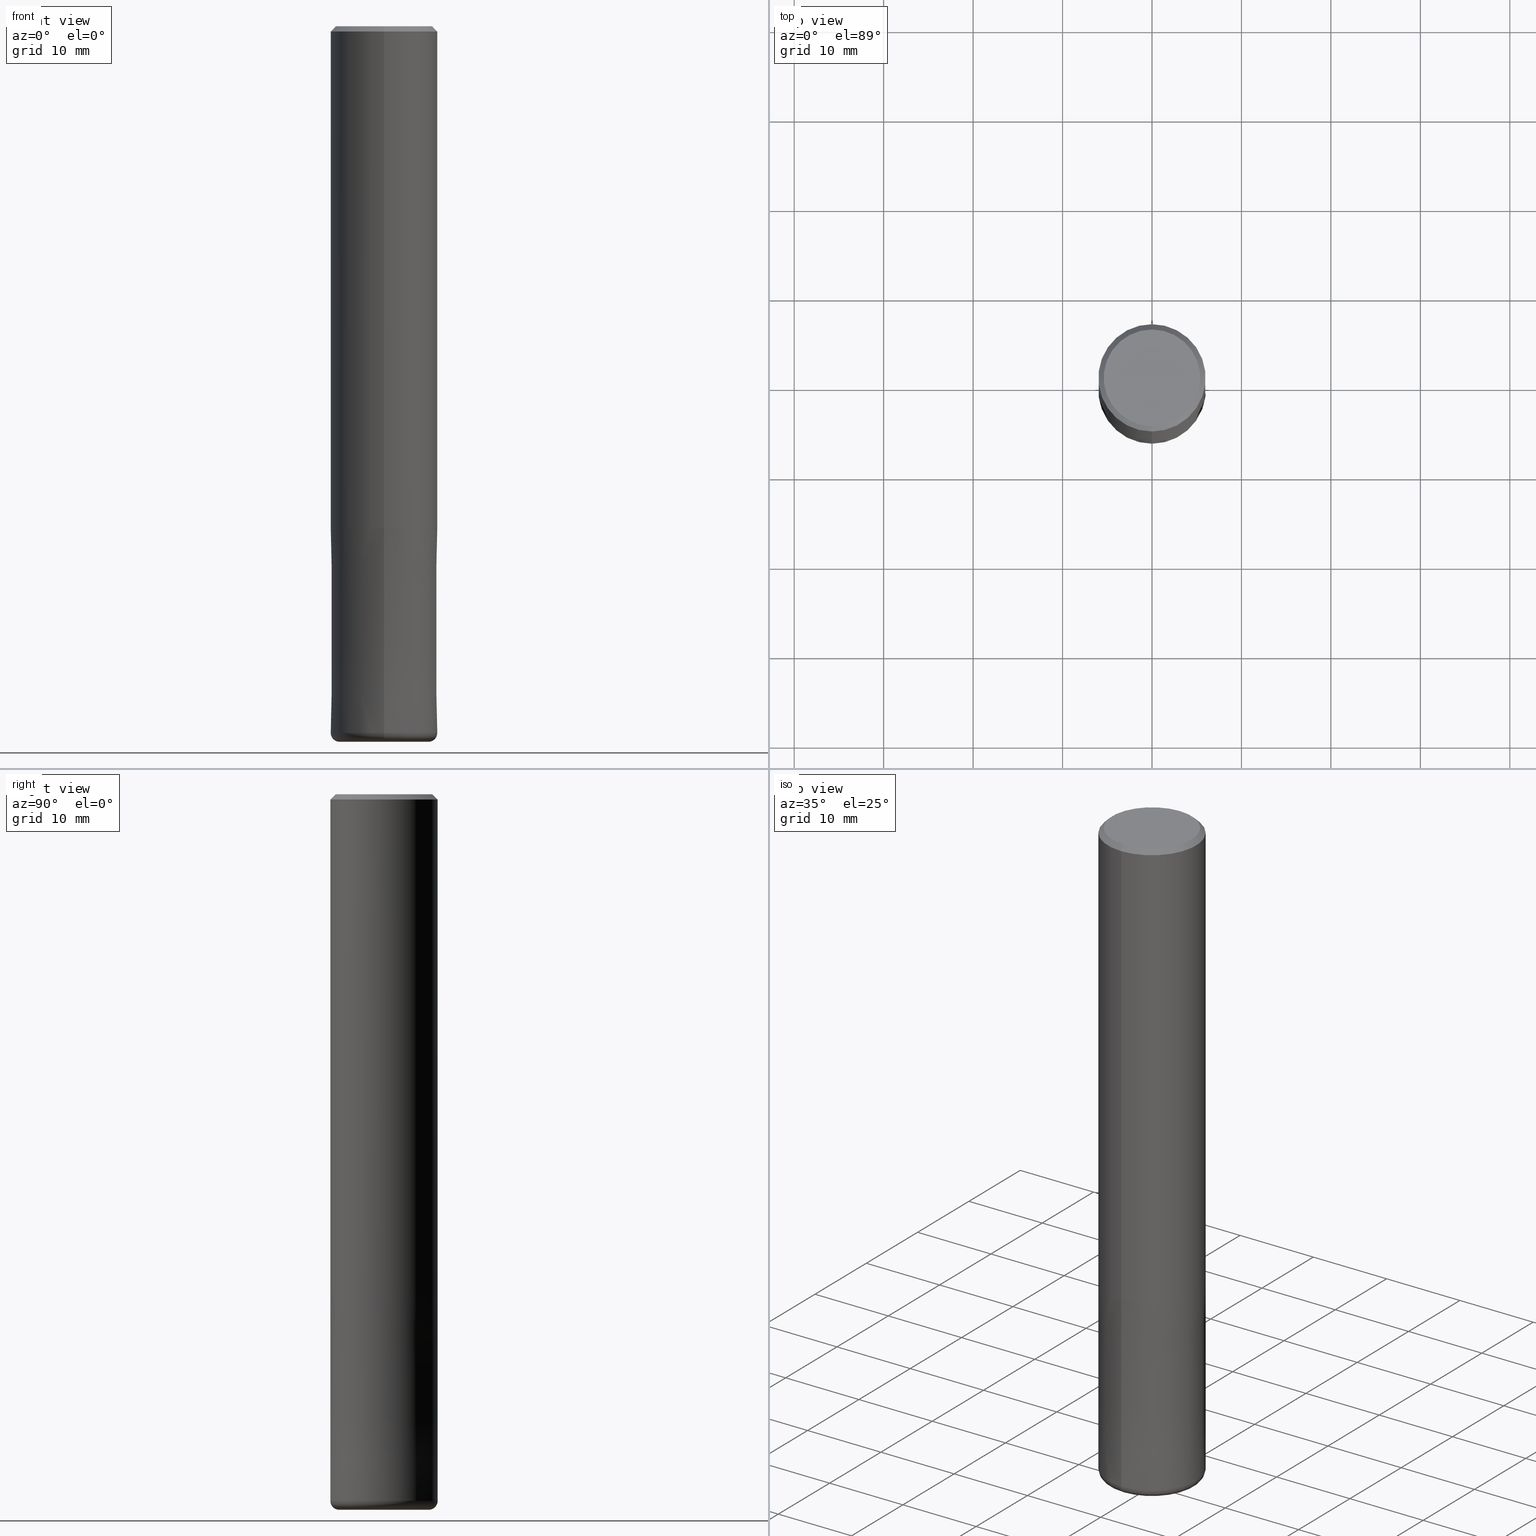
[diagram: canonical four-view strip — front | top / right | iso, engineering-drawing reading convention]
A machine part, canonical four-view strip (front | top / right | iso — engineering-drawing reading convention). The complete STEP part file that produces these views, byte-faithful:
ISO-10303-21;
HEADER;
FILE_DESCRIPTION(('no description'),'unknown implementation level');
FILE_NAME('CXRS5120-10-2400-Huellk.stp','  ',('CIMSOURCE GmbH'),('CADClick - KiM GmbH - www.kimweb.de'),'unknown preprocess','ACIS','unknown authorization');
FILE_SCHEMA(('automotive_design'));
ENDSEC;
DATA;
#1=MECHANICAL_DESIGN_GEOMETRIC_PRESENTATION_REPRESENTATION(' ',(#14,#15,#16,#17,#18,#19,#20,#21,#22,#23,#24,#25,#26,#27,#28,#29,#30,#31,#32,#33,#34,#35,#36,#37,#38,#39,#40,#41,#42,#43,#44,#45,#46,#47,#48,#49,#50,#51,#52,#53,#54,#55,#56,#57,#58,#59,#60,#61,#62,#63,#64,#65,#66,#67,#68,#69,#70,#71,#72,#73,#74,#75,#76,#77,#78,#79,#80,#81,#82,#83,#84),#10);
#2=PRODUCT_DEFINITION_CONTEXT('',#85,'design');
#3=APPLICATION_PROTOCOL_DEFINITION('INTERNATIONAL STANDARD','automotive_design',1994,#85);
#4=PRODUCT_CATEGORY_RELATIONSHIP('NONE','NONE',#86,#87);
#5=SHAPE_DEFINITION_REPRESENTATION(#88,#89);
#6=PRODUCT_DEFINITION_CONTEXT('',#90,'design');
#7=APPLICATION_PROTOCOL_DEFINITION('INTERNATIONAL STANDARD','automotive_design',1994,#90);
#8=PRODUCT_CATEGORY_RELATIONSHIP('NONE','NONE',#91,#92);
#9=SHAPE_DEFINITION_REPRESENTATION(#93,#94);
#10= (GEOMETRIC_REPRESENTATION_CONTEXT(3)GLOBAL_UNCERTAINTY_ASSIGNED_CONTEXT((#97))GLOBAL_UNIT_ASSIGNED_CONTEXT((#99,#100,#101))REPRESENTATION_CONTEXT('NONE','WORKSPACE'));
#14=STYLED_ITEM('',(#103),#104);
#15=STYLED_ITEM('',(#105),#106);
#16=STYLED_ITEM('',(#107),#108);
#17=STYLED_ITEM('',(#109),#110);
#18=STYLED_ITEM('',(#111),#112);
#19=STYLED_ITEM('',(#113),#114);
#20=STYLED_ITEM('',(#115),#116);
#21=STYLED_ITEM('',(#117),#118);
#22=STYLED_ITEM('',(#119),#120);
#23=STYLED_ITEM('',(#121),#122);
#24=STYLED_ITEM('',(#123),#124);
#25=STYLED_ITEM('',(#125),#126);
#26=STYLED_ITEM('',(#127),#128);
#27=STYLED_ITEM('',(#129),#130);
#28=STYLED_ITEM('',(#131),#132);
#29=STYLED_ITEM('',(#133),#134);
#30=STYLED_ITEM('',(#135),#136);
#31=STYLED_ITEM('',(#137),#138);
#32=STYLED_ITEM('',(#139),#140);
#33=STYLED_ITEM('',(#141),#142);
#34=STYLED_ITEM('',(#143),#144);
#35=STYLED_ITEM('',(#145),#146);
#36=STYLED_ITEM('',(#147),#148);
#37=STYLED_ITEM('',(#149),#150);
#38=STYLED_ITEM('',(#151),#152);
#39=STYLED_ITEM('',(#153),#154);
#40=STYLED_ITEM('',(#155),#156);
#41=STYLED_ITEM('',(#157),#158);
#42=STYLED_ITEM('',(#159),#160);
#43=STYLED_ITEM('',(#161),#162);
#44=STYLED_ITEM('',(#163),#164);
#45=STYLED_ITEM('',(#165),#166);
#46=STYLED_ITEM('',(#167),#168);
#47=STYLED_ITEM('',(#169),#170);
#48=STYLED_ITEM('',(#171),#172);
#49=STYLED_ITEM('',(#173),#174);
#50=STYLED_ITEM('',(#175),#176);
#51=STYLED_ITEM('',(#177),#178);
#52=STYLED_ITEM('',(#179),#180);
#53=STYLED_ITEM('',(#181),#182);
#54=STYLED_ITEM('',(#183),#184);
#55=STYLED_ITEM('',(#185),#186);
#56=STYLED_ITEM('',(#187),#188);
#57=STYLED_ITEM('',(#189),#190);
#58=STYLED_ITEM('',(#191),#192);
#59=STYLED_ITEM('',(#193),#194);
#60=STYLED_ITEM('',(#195),#196);
#61=STYLED_ITEM('',(#197),#198);
#62=STYLED_ITEM('',(#199),#200);
#63=STYLED_ITEM('',(#201),#202);
#64=STYLED_ITEM('',(#203),#204);
#65=STYLED_ITEM('',(#205),#206);
#66=STYLED_ITEM('',(#207),#208);
#67=STYLED_ITEM('',(#209),#210);
#68=STYLED_ITEM('',(#211),#212);
#69=STYLED_ITEM('',(#213),#214);
#70=STYLED_ITEM('',(#215),#216);
#71=STYLED_ITEM('',(#217),#218);
#72=STYLED_ITEM('',(#219),#220);
#73=STYLED_ITEM('',(#221),#222);
#74=STYLED_ITEM('',(#223),#224);
#75=STYLED_ITEM('',(#225),#226);
#76=STYLED_ITEM('',(#227),#228);
#77=STYLED_ITEM('',(#229),#230);
#78=STYLED_ITEM('',(#231),#232);
#79=STYLED_ITEM('',(#233),#234);
#80=STYLED_ITEM('',(#235),#236);
#81=STYLED_ITEM('',(#237),#238);
#82=STYLED_ITEM('',(#239),#240);
#83=STYLED_ITEM('',(#241),#242);
#84=STYLED_ITEM('',(#243),#244);
#85=APPLICATION_CONTEXT(' ');
#86=PRODUCT_CATEGORY('part','NONE');
#87=PRODUCT_RELATED_PRODUCT_CATEGORY('detail',' ',(#245));
#88=PRODUCT_DEFINITION_SHAPE('NONE','NONE',#246);
#89=ADVANCED_BREP_SHAPE_REPRESENTATION('1',(#178,#247),#10);
#90=APPLICATION_CONTEXT(' ');
#91=PRODUCT_CATEGORY('part','NONE');
#92=PRODUCT_RELATED_PRODUCT_CATEGORY('detail',' ',(#248));
#93=PRODUCT_DEFINITION_SHAPE('NONE','NONE',#249);
#94=ADVANCED_BREP_SHAPE_REPRESENTATION('2',(#228,#250),#10);
#97=UNCERTAINTY_MEASURE_WITH_UNIT(LENGTH_MEASURE(1.0E-006),#99,'','');
#99= (CONVERSION_BASED_UNIT('MILLIMETRE',#253)LENGTH_UNIT()NAMED_UNIT(#256));
#100= (NAMED_UNIT(#258)PLANE_ANGLE_UNIT()SI_UNIT($,.RADIAN.));
#101= (NAMED_UNIT(#258)SOLID_ANGLE_UNIT()SI_UNIT($,.STERADIAN.));
#103=PRESENTATION_STYLE_ASSIGNMENT((#264));
#104=EDGE_CURVE('',#144,#168,#265,.T.);
#105=PRESENTATION_STYLE_ASSIGNMENT((#266));
#106=ADVANCED_FACE('',(#267),#268,.T.);
#107=PRESENTATION_STYLE_ASSIGNMENT((#269));
#108=ADVANCED_FACE('',(#270),#271,.T.);
#109=PRESENTATION_STYLE_ASSIGNMENT((#272));
#110=EDGE_CURVE('',#222,#130,#273,.T.);
#111=PRESENTATION_STYLE_ASSIGNMENT((#274));
#112=ADVANCED_FACE('',(#275),#276,.T.);
#113=PRESENTATION_STYLE_ASSIGNMENT((#277));
#114=ADVANCED_FACE('',(#278),#279,.T.);
#115=PRESENTATION_STYLE_ASSIGNMENT((#280));
#116=VERTEX_POINT('',#281);
#117=PRESENTATION_STYLE_ASSIGNMENT((#282));
#118=VERTEX_POINT('',#283);
#119=PRESENTATION_STYLE_ASSIGNMENT((#284));
#120=EDGE_CURVE('',#136,#196,#285,.T.);
#121=PRESENTATION_STYLE_ASSIGNMENT((#286));
#122=VERTEX_POINT('',#287);
#123=PRESENTATION_STYLE_ASSIGNMENT((#288));
#124=EDGE_CURVE('',#168,#244,#289,.T.);
#125=PRESENTATION_STYLE_ASSIGNMENT((#290));
#126=EDGE_CURVE('',#122,#236,#291,.T.);
#127=PRESENTATION_STYLE_ASSIGNMENT((#292));
#128=VERTEX_POINT('',#293);
#129=PRESENTATION_STYLE_ASSIGNMENT((#294));
#130=VERTEX_POINT('',#295);
#131=PRESENTATION_STYLE_ASSIGNMENT((#296));
#132=EDGE_CURVE('',#168,#116,#297,.T.);
#133=PRESENTATION_STYLE_ASSIGNMENT((#298));
#134=ADVANCED_FACE('',(#299),#300,.T.);
#135=PRESENTATION_STYLE_ASSIGNMENT((#301));
#136=VERTEX_POINT('',#302);
#137=PRESENTATION_STYLE_ASSIGNMENT((#303));
#138=EDGE_CURVE('',#116,#220,#304,.T.);
#139=PRESENTATION_STYLE_ASSIGNMENT((#305));
#140=ADVANCED_FACE('',(#306),#307,.F.);
#141=PRESENTATION_STYLE_ASSIGNMENT((#308));
#142=ADVANCED_FACE('',(#309),#310,.T.);
#143=PRESENTATION_STYLE_ASSIGNMENT((#311));
#144=VERTEX_POINT('',#312);
#145=PRESENTATION_STYLE_ASSIGNMENT((#313));
#146=VERTEX_POINT('',#314);
#147=PRESENTATION_STYLE_ASSIGNMENT((#315));
#148=ADVANCED_FACE('',(#316),#317,.T.);
#149=PRESENTATION_STYLE_ASSIGNMENT((#318));
#150=EDGE_CURVE('',#146,#172,#319,.T.);
#151=PRESENTATION_STYLE_ASSIGNMENT((#320));
#152=EDGE_CURVE('',#240,#146,#321,.T.);
#153=PRESENTATION_STYLE_ASSIGNMENT((#322));
#154=EDGE_CURVE('',#230,#236,#323,.T.);
#155=PRESENTATION_STYLE_ASSIGNMENT((#324));
#156=EDGE_CURVE('',#128,#240,#325,.T.);
#157=PRESENTATION_STYLE_ASSIGNMENT((#326));
#158=EDGE_CURVE('',#236,#230,#327,.T.);
#159=PRESENTATION_STYLE_ASSIGNMENT((#328));
#160=EDGE_CURVE('',#230,#218,#329,.T.);
#161=PRESENTATION_STYLE_ASSIGNMENT((#330));
#162=EDGE_CURVE('',#118,#180,#331,.T.);
#163=PRESENTATION_STYLE_ASSIGNMENT((#332));
#164=ADVANCED_FACE('',(#333),#334,.T.);
#165=PRESENTATION_STYLE_ASSIGNMENT((#335));
#166=VERTEX_POINT('',#336);
#167=PRESENTATION_STYLE_ASSIGNMENT((#337));
#168=VERTEX_POINT('',#338);
#169=PRESENTATION_STYLE_ASSIGNMENT((#339));
#170=EDGE_CURVE('',#218,#122,#340,.T.);
#171=PRESENTATION_STYLE_ASSIGNMENT((#341));
#172=VERTEX_POINT('',#342);
#173=PRESENTATION_STYLE_ASSIGNMENT((#343));
#174=ADVANCED_FACE('',(#344),#345,.T.);
#175=PRESENTATION_STYLE_ASSIGNMENT((#346));
#176=EDGE_CURVE('',#196,#136,#347,.T.);
#177=PRESENTATION_STYLE_ASSIGNMENT((#348));
#178=MANIFOLD_SOLID_BREP('1',#349);
#179=PRESENTATION_STYLE_ASSIGNMENT((#350));
#180=VERTEX_POINT('',#351);
#181=PRESENTATION_STYLE_ASSIGNMENT((#352));
#182=EDGE_CURVE('',#172,#128,#353,.T.);
#183=PRESENTATION_STYLE_ASSIGNMENT((#354));
#184=EDGE_CURVE('',#130,#222,#355,.T.);
#185=PRESENTATION_STYLE_ASSIGNMENT((#356));
#186=EDGE_CURVE('',#180,#118,#357,.T.);
#187=PRESENTATION_STYLE_ASSIGNMENT((#358));
#188=EDGE_CURVE('',#128,#172,#359,.T.);
#189=PRESENTATION_STYLE_ASSIGNMENT((#360));
#190=EDGE_CURVE('',#118,#136,#361,.T.);
#191=PRESENTATION_STYLE_ASSIGNMENT((#362));
#192=EDGE_CURVE('',#244,#166,#363,.T.);
#193=PRESENTATION_STYLE_ASSIGNMENT((#364));
#194=ADVANCED_FACE('',(#365,#366),#367,.T.);
#195=PRESENTATION_STYLE_ASSIGNMENT((#368));
#196=VERTEX_POINT('',#369);
#197=PRESENTATION_STYLE_ASSIGNMENT((#370));
#198=EDGE_CURVE('',#196,#180,#371,.T.);
#199=PRESENTATION_STYLE_ASSIGNMENT((#372));
#200=ADVANCED_FACE('',(#373),#374,.F.);
#201=PRESENTATION_STYLE_ASSIGNMENT((#375));
#202=ADVANCED_FACE('',(#376),#377,.T.);
#203=PRESENTATION_STYLE_ASSIGNMENT((#378));
#204=EDGE_CURVE('',#144,#166,#379,.T.);
#205=PRESENTATION_STYLE_ASSIGNMENT((#380));
#206=ADVANCED_FACE('',(#381),#382,.T.);
#207=PRESENTATION_STYLE_ASSIGNMENT((#383));
#208=EDGE_CURVE('',#244,#168,#384,.T.);
#209=PRESENTATION_STYLE_ASSIGNMENT((#385));
#210=EDGE_CURVE('',#122,#218,#386,.T.);
#211=PRESENTATION_STYLE_ASSIGNMENT((#387));
#212=ADVANCED_FACE('',(#388,#389),#390,.T.);
#213=PRESENTATION_STYLE_ASSIGNMENT((#391));
#214=EDGE_CURVE('',#146,#240,#392,.T.);
#215=PRESENTATION_STYLE_ASSIGNMENT((#393));
#216=EDGE_CURVE('',#220,#116,#394,.T.);
#217=PRESENTATION_STYLE_ASSIGNMENT((#395));
#218=VERTEX_POINT('',#396);
#219=PRESENTATION_STYLE_ASSIGNMENT((#397));
#220=VERTEX_POINT('',#398);
#221=PRESENTATION_STYLE_ASSIGNMENT((#399));
#222=VERTEX_POINT('',#400);
#223=PRESENTATION_STYLE_ASSIGNMENT((#401));
#224=EDGE_CURVE('',#166,#144,#402,.T.);
#225=PRESENTATION_STYLE_ASSIGNMENT((#403));
#226=EDGE_CURVE('',#222,#240,#404,.T.);
#227=PRESENTATION_STYLE_ASSIGNMENT((#405));
#228=MANIFOLD_SOLID_BREP('2',#406);
#229=PRESENTATION_STYLE_ASSIGNMENT((#407));
#230=VERTEX_POINT('',#408);
#231=PRESENTATION_STYLE_ASSIGNMENT((#409));
#232=EDGE_CURVE('',#220,#244,#410,.T.);
#233=PRESENTATION_STYLE_ASSIGNMENT((#411));
#234=ADVANCED_FACE('',(#412),#413,.T.);
#235=PRESENTATION_STYLE_ASSIGNMENT((#414));
#236=VERTEX_POINT('',#415);
#237=PRESENTATION_STYLE_ASSIGNMENT((#416));
#238=EDGE_CURVE('',#146,#130,#417,.T.);
#239=PRESENTATION_STYLE_ASSIGNMENT((#418));
#240=VERTEX_POINT('',#419);
#241=PRESENTATION_STYLE_ASSIGNMENT((#420));
#242=ADVANCED_FACE('',(#421,#422),#423,.T.);
#243=PRESENTATION_STYLE_ASSIGNMENT((#424));
#244=VERTEX_POINT('',#425);
#245=PRODUCT('1','1','PART-1-DESC',(#426));
#246=PRODUCT_DEFINITION('NONE','NONE',#427,#2);
#247=AXIS2_PLACEMENT_3D('',#428,#429,#430);
#248=PRODUCT('2','2','PART-2-DESC',(#431));
#249=PRODUCT_DEFINITION('NONE','NONE',#432,#6);
#250=AXIS2_PLACEMENT_3D('',#433,#434,#435);
#253=LENGTH_MEASURE_WITH_UNIT(LENGTH_MEASURE(1.0),#436);
#256=DIMENSIONAL_EXPONENTS(1.0,0.0,0.0,0.0,0.0,0.0,0.0);
#258=DIMENSIONAL_EXPONENTS(0.0,0.0,0.0,0.0,0.0,0.0,0.0);
#264=CURVE_STYLE('',#437,POSITIVE_LENGTH_MEASURE(1.0E-006),#438);
#265=LINE('',#439,#440);
#266=SURFACE_STYLE_USAGE(.BOTH.,#441);
#267=FACE_OUTER_BOUND('',#442,.T.);
#268=CONICAL_SURFACE('',#443,5.7,0.785398163397447);
#269=SURFACE_STYLE_USAGE(.BOTH.,#444);
#270=FACE_OUTER_BOUND('',#445,.T.);
#271=TOROIDAL_SURFACE('',#446,5.00000000000001,0.999999999999989);
#272=CURVE_STYLE('',#447,POSITIVE_LENGTH_MEASURE(1.0E-006),#448);
#273=CIRCLE('',#449,5.9999);
#274=SURFACE_STYLE_USAGE(.BOTH.,#450);
#275=FACE_OUTER_BOUND('',#451,.T.);
#276=CYLINDRICAL_SURFACE('',#452,6.0);
#277=SURFACE_STYLE_USAGE(.BOTH.,#453);
#278=FACE_OUTER_BOUND('',#454,.T.);
#279=CONICAL_SURFACE('',#455,5.99995,4.34782608691899E-006);
#280=POINT_STYLE(' ',#456,POSITIVE_LENGTH_MEASURE(1.0E-006),#457);
#281=CARTESIAN_POINT('',(6.61287431064084E-016,-5.4,0.0));
#282=POINT_STYLE(' ',#458,POSITIVE_LENGTH_MEASURE(1.0E-006),#459);
#283=CARTESIAN_POINT('',(3.30643715532042E-016,-2.7,-79.76));
#284=CURVE_STYLE('',#460,POSITIVE_LENGTH_MEASURE(1.0E-006),#461);
#285=CIRCLE('',#462,2.7);
#286=POINT_STYLE(' ',#463,POSITIVE_LENGTH_MEASURE(1.0E-006),#464);
#287=CARTESIAN_POINT('',(3.30643715532042E-016,-2.7,-80.0));
#288=CURVE_STYLE('',#465,POSITIVE_LENGTH_MEASURE(1.0E-006),#466);
#289=CIRCLE('',#467,6.0);
#290=CURVE_STYLE('',#468,POSITIVE_LENGTH_MEASURE(1.0E-006),#469);
#291=LINE('',#470,#471);
#292=POINT_STYLE(' ',#472,POSITIVE_LENGTH_MEASURE(1.0E-006),#473);
#293=CARTESIAN_POINT('',(0.0,5.0,-80.0));
#294=POINT_STYLE(' ',#474,POSITIVE_LENGTH_MEASURE(1.0E-006),#475);
#295=CARTESIAN_POINT('',(7.34751566229888E-016,-5.9999,-56.0));
#296=CURVE_STYLE('',#476,POSITIVE_LENGTH_MEASURE(1.0E-006),#477);
#297=LINE('',#478,#479);
#298=SURFACE_STYLE_USAGE(.BOTH.,#480);
#299=FACE_OUTER_BOUND('',#481,.T.);
#300=CONICAL_SURFACE('',#482,5.7,0.785398163397447);
#301=POINT_STYLE(' ',#483,POSITIVE_LENGTH_MEASURE(1.0E-006),#484);
#302=CARTESIAN_POINT('',(3.30643715532042E-016,-2.7,-56.0));
#303=CURVE_STYLE('',#485,POSITIVE_LENGTH_MEASURE(1.0E-006),#486);
#304=CIRCLE('',#487,5.4);
#305=SURFACE_STYLE_USAGE(.BOTH.,#488);
#306=FACE_OUTER_BOUND('',#489,.T.);
#307=CYLINDRICAL_SURFACE('',#490,2.7);
#308=SURFACE_STYLE_USAGE(.BOTH.,#491);
#309=FACE_OUTER_BOUND('',#492,.T.);
#310=CONICAL_SURFACE('',#493,5.99995,4.34782608691899E-006);
#311=POINT_STYLE(' ',#494,POSITIVE_LENGTH_MEASURE(1.0E-006),#495);
#312=CARTESIAN_POINT('',(7.34763812293426E-016,-6.0,-56.0));
#313=POINT_STYLE(' ',#496,POSITIVE_LENGTH_MEASURE(1.0E-006),#497);
#314=CARTESIAN_POINT('',(7.34763812293426E-016,-6.0,-79.0));
#315=SURFACE_STYLE_USAGE(.BOTH.,#498);
#316=FACE_OUTER_BOUND('',#499,.T.);
#317=PLANE('',#500);
#318=CURVE_STYLE('',#501,POSITIVE_LENGTH_MEASURE(1.0E-006),#502);
#319=CIRCLE('',#503,0.999999999999989);
#320=CURVE_STYLE('',#504,POSITIVE_LENGTH_MEASURE(1.0E-006),#505);
#321=CIRCLE('',#506,6.0);
#322=CURVE_STYLE('',#507,POSITIVE_LENGTH_MEASURE(1.0E-006),#508);
#323=CIRCLE('',#509,2.7);
#324=CURVE_STYLE('',#510,POSITIVE_LENGTH_MEASURE(1.0E-006),#511);
#325=CIRCLE('',#512,0.999999999999989);
#326=CURVE_STYLE('',#513,POSITIVE_LENGTH_MEASURE(1.0E-006),#514);
#327=CIRCLE('',#515,2.7);
#328=CURVE_STYLE('',#516,POSITIVE_LENGTH_MEASURE(1.0E-006),#517);
#329=LINE('',#518,#519);
#330=CURVE_STYLE('',#520,POSITIVE_LENGTH_MEASURE(1.0E-006),#521);
#331=CIRCLE('',#522,2.7);
#332=SURFACE_STYLE_USAGE(.BOTH.,#523);
#333=FACE_OUTER_BOUND('',#524,.T.);
#334=CYLINDRICAL_SURFACE('',#525,6.0);
#335=POINT_STYLE(' ',#526,POSITIVE_LENGTH_MEASURE(1.0E-006),#527);
#336=CARTESIAN_POINT('',(0.0,6.0,-56.0));
#337=POINT_STYLE(' ',#528,POSITIVE_LENGTH_MEASURE(1.0E-006),#529);
#338=CARTESIAN_POINT('',(7.34763812293426E-016,-6.0,-0.600000000000001));
#339=CURVE_STYLE('',#530,POSITIVE_LENGTH_MEASURE(1.0E-006),#531);
#340=CIRCLE('',#532,2.7);
#341=POINT_STYLE(' ',#533,POSITIVE_LENGTH_MEASURE(1.0E-006),#534);
#342=CARTESIAN_POINT('',(6.12303176911189E-016,-5.0,-80.0));
#343=SURFACE_STYLE_USAGE(.BOTH.,#535);
#344=FACE_OUTER_BOUND('',#536,.T.);
#345=PLANE('',#537);
#346=CURVE_STYLE('',#538,POSITIVE_LENGTH_MEASURE(1.0E-006),#539);
#347=CIRCLE('',#540,2.7);
#348=SURFACE_STYLE_USAGE(.BOTH.,#541);
#349=CLOSED_SHELL('',(#234,#164,#134,#242,#174,#106,#112,#202,#148));
#350=POINT_STYLE(' ',#542,POSITIVE_LENGTH_MEASURE(1.0E-006),#543);
#351=CARTESIAN_POINT('',(0.0,2.7,-79.76));
#352=CURVE_STYLE('',#544,POSITIVE_LENGTH_MEASURE(1.0E-006),#545);
#353=CIRCLE('',#546,5.0);
#354=CURVE_STYLE('',#547,POSITIVE_LENGTH_MEASURE(1.0E-006),#548);
#355=CIRCLE('',#549,5.9999);
#356=CURVE_STYLE('',#550,POSITIVE_LENGTH_MEASURE(1.0E-006),#551);
#357=CIRCLE('',#552,2.7);
#358=CURVE_STYLE('',#553,POSITIVE_LENGTH_MEASURE(1.0E-006),#554);
#359=CIRCLE('',#555,5.0);
#360=CURVE_STYLE('',#556,POSITIVE_LENGTH_MEASURE(1.0E-006),#557);
#361=LINE('',#558,#559);
#362=CURVE_STYLE('',#560,POSITIVE_LENGTH_MEASURE(1.0E-006),#561);
#363=LINE('',#562,#563);
#364=SURFACE_STYLE_USAGE(.BOTH.,#564);
#365=FACE_BOUND('',#565,.T.);
#366=FACE_OUTER_BOUND('',#566,.T.);
#367=PLANE('',#567);
#368=POINT_STYLE(' ',#568,POSITIVE_LENGTH_MEASURE(1.0E-006),#569);
#369=CARTESIAN_POINT('',(0.0,2.7,-56.0));
#370=CURVE_STYLE('',#570,POSITIVE_LENGTH_MEASURE(1.0E-006),#571);
#371=LINE('',#572,#573);
#372=SURFACE_STYLE_USAGE(.BOTH.,#574);
#373=FACE_OUTER_BOUND('',#575,.T.);
#374=CYLINDRICAL_SURFACE('',#576,2.7);
#375=SURFACE_STYLE_USAGE(.BOTH.,#577);
#376=FACE_OUTER_BOUND('',#578,.T.);
#377=CYLINDRICAL_SURFACE('',#579,2.7);
#378=CURVE_STYLE('',#580,POSITIVE_LENGTH_MEASURE(1.0E-006),#581);
#379=CIRCLE('',#582,6.0);
#380=SURFACE_STYLE_USAGE(.BOTH.,#583);
#381=FACE_OUTER_BOUND('',#584,.T.);
#382=TOROIDAL_SURFACE('',#585,5.00000000000001,0.999999999999989);
#383=CURVE_STYLE('',#586,POSITIVE_LENGTH_MEASURE(1.0E-006),#587);
#384=CIRCLE('',#588,6.0);
#385=CURVE_STYLE('',#589,POSITIVE_LENGTH_MEASURE(1.0E-006),#590);
#386=CIRCLE('',#591,2.7);
#387=SURFACE_STYLE_USAGE(.BOTH.,#592);
#388=FACE_OUTER_BOUND('',#593,.T.);
#389=FACE_BOUND('',#594,.T.);
#390=PLANE('',#595);
#391=CURVE_STYLE('',#596,POSITIVE_LENGTH_MEASURE(1.0E-006),#597);
#392=CIRCLE('',#598,6.0);
#393=CURVE_STYLE('',#599,POSITIVE_LENGTH_MEASURE(1.0E-006),#600);
#394=CIRCLE('',#601,5.4);
#395=POINT_STYLE(' ',#602,POSITIVE_LENGTH_MEASURE(1.0E-006),#603);
#396=CARTESIAN_POINT('',(0.0,2.7,-80.0));
#397=POINT_STYLE(' ',#604,POSITIVE_LENGTH_MEASURE(1.0E-006),#605);
#398=CARTESIAN_POINT('',(0.0,5.4,0.0));
#399=POINT_STYLE(' ',#606,POSITIVE_LENGTH_MEASURE(1.0E-006),#607);
#400=CARTESIAN_POINT('',(0.0,5.9999,-56.0));
#401=CURVE_STYLE('',#608,POSITIVE_LENGTH_MEASURE(1.0E-006),#609);
#402=CIRCLE('',#610,6.0);
#403=CURVE_STYLE('',#611,POSITIVE_LENGTH_MEASURE(1.0E-006),#612);
#404=LINE('',#613,#614);
#405=SURFACE_STYLE_USAGE(.BOTH.,#615);
#406=CLOSED_SHELL('',(#200,#206,#142,#212,#114,#108,#194,#140));
#407=POINT_STYLE(' ',#616,POSITIVE_LENGTH_MEASURE(1.0E-006),#617);
#408=CARTESIAN_POINT('',(0.0,2.7,-56.0));
#409=CURVE_STYLE('',#618,POSITIVE_LENGTH_MEASURE(1.0E-006),#619);
#410=LINE('',#620,#621);
#411=SURFACE_STYLE_USAGE(.BOTH.,#622);
#412=FACE_OUTER_BOUND('',#623,.T.);
#413=CYLINDRICAL_SURFACE('',#624,2.7);
#414=POINT_STYLE(' ',#625,POSITIVE_LENGTH_MEASURE(1.0E-006),#626);
#415=CARTESIAN_POINT('',(3.30643715532042E-016,-2.7,-56.0));
#416=CURVE_STYLE('',#627,POSITIVE_LENGTH_MEASURE(1.0E-006),#628);
#417=LINE('',#629,#630);
#418=POINT_STYLE(' ',#631,POSITIVE_LENGTH_MEASURE(1.0E-006),#632);
#419=CARTESIAN_POINT('',(0.0,6.0,-79.0));
#420=SURFACE_STYLE_USAGE(.BOTH.,#633);
#421=FACE_OUTER_BOUND('',#634,.T.);
#422=FACE_BOUND('',#635,.T.);
#423=PLANE('',#636);
#424=POINT_STYLE(' ',#637,POSITIVE_LENGTH_MEASURE(1.0E-006),#638);
#425=CARTESIAN_POINT('',(0.0,6.0,-0.600000000000001));
#426=PRODUCT_CONTEXT('',#85,'mechanical');
#427=PRODUCT_DEFINITION_FORMATION_WITH_SPECIFIED_SOURCE(' ','NONE',#245,.NOT_KNOWN.);
#428=CARTESIAN_POINT('',(0.0,0.0,0.0));
#429=DIRECTION('',(0.0,0.0,1.0));
#430=DIRECTION('',(1.0,0.0,0.0));
#431=PRODUCT_CONTEXT('',#90,'mechanical');
#432=PRODUCT_DEFINITION_FORMATION_WITH_SPECIFIED_SOURCE(' ','NONE',#248,.NOT_KNOWN.);
#433=CARTESIAN_POINT('',(0.0,0.0,0.0));
#434=DIRECTION('',(0.0,0.0,1.0));
#435=DIRECTION('',(1.0,0.0,0.0));
#436= (NAMED_UNIT(#256)LENGTH_UNIT()SI_UNIT(.MILLI.,.METRE.));
#437=DRAUGHTING_PRE_DEFINED_CURVE_FONT('continuous');
#438=COLOUR_RGB('',0.498039215803146,0.498039215803146,0.498039215803146);
#439=CARTESIAN_POINT('',(7.34763812293426E-016,-6.0,-28.3));
#440=VECTOR('',#640,1.0);
#441=SURFACE_SIDE_STYLE('',(#641));
#442=EDGE_LOOP('',(#642,#643,#644,#645));
#443=AXIS2_PLACEMENT_3D('',#646,#647,#648);
#444=SURFACE_SIDE_STYLE('',(#649));
#445=EDGE_LOOP('',(#650,#651,#652,#653));
#446=AXIS2_PLACEMENT_3D('',#654,#655,#656);
#447=DRAUGHTING_PRE_DEFINED_CURVE_FONT('continuous');
#448=COLOUR_RGB('',0.800000011920929,0.800000011920929,0.800000011920929);
#449=AXIS2_PLACEMENT_3D('',#657,#658,#659);
#450=SURFACE_SIDE_STYLE('',(#660));
#451=EDGE_LOOP('',(#661,#662,#663,#664));
#452=AXIS2_PLACEMENT_3D('',#665,#666,#667);
#453=SURFACE_SIDE_STYLE('',(#668));
#454=EDGE_LOOP('',(#669,#670,#671,#672));
#455=AXIS2_PLACEMENT_3D('',#673,#674,#675);
#456=PRE_DEFINED_MARKER('');
#457=COLOUR_RGB('',0.498039215803146,0.498039215803146,0.498039215803146);
#458=PRE_DEFINED_MARKER('');
#459=COLOUR_RGB('',0.498039215803146,0.498039215803146,0.498039215803146);
#460=DRAUGHTING_PRE_DEFINED_CURVE_FONT('continuous');
#461=COLOUR_RGB('',0.498039215803146,0.498039215803146,0.498039215803146);
#462=AXIS2_PLACEMENT_3D('',#676,#677,#678);
#463=PRE_DEFINED_MARKER('');
#464=COLOUR_RGB('',0.800000011920929,0.800000011920929,0.800000011920929);
#465=DRAUGHTING_PRE_DEFINED_CURVE_FONT('continuous');
#466=COLOUR_RGB('',0.498039215803146,0.498039215803146,0.498039215803146);
#467=AXIS2_PLACEMENT_3D('',#679,#680,#681);
#468=DRAUGHTING_PRE_DEFINED_CURVE_FONT('continuous');
#469=COLOUR_RGB('',0.800000011920929,0.800000011920929,0.800000011920929);
#470=CARTESIAN_POINT('',(3.30643715532042E-016,-2.7,-68.0));
#471=VECTOR('',#682,1.0);
#472=PRE_DEFINED_MARKER('');
#473=COLOUR_RGB('',0.800000011920929,0.800000011920929,0.800000011920929);
#474=PRE_DEFINED_MARKER('');
#475=COLOUR_RGB('',0.800000011920929,0.800000011920929,0.800000011920929);
#476=DRAUGHTING_PRE_DEFINED_CURVE_FONT('continuous');
#477=COLOUR_RGB('',0.498039215803146,0.498039215803146,0.498039215803146);
#478=CARTESIAN_POINT('',(6.98025621678755E-016,-5.7,-0.300000000000004));
#479=VECTOR('',#683,1.0);
#480=SURFACE_SIDE_STYLE('',(#684));
#481=EDGE_LOOP('',(#685,#686,#687,#688));
#482=AXIS2_PLACEMENT_3D('',#689,#690,#691);
#483=PRE_DEFINED_MARKER('');
#484=COLOUR_RGB('',0.498039215803146,0.498039215803146,0.498039215803146);
#485=DRAUGHTING_PRE_DEFINED_CURVE_FONT('continuous');
#486=COLOUR_RGB('',0.498039215803146,0.498039215803146,0.498039215803146);
#487=AXIS2_PLACEMENT_3D('',#692,#693,#694);
#488=SURFACE_SIDE_STYLE('',(#695));
#489=EDGE_LOOP('',(#696,#697,#698,#699));
#490=AXIS2_PLACEMENT_3D('',#700,#701,#702);
#491=SURFACE_SIDE_STYLE('',(#703));
#492=EDGE_LOOP('',(#704,#705,#706,#707));
#493=AXIS2_PLACEMENT_3D('',#708,#709,#710);
#494=PRE_DEFINED_MARKER('');
#495=COLOUR_RGB('',0.498039215803146,0.498039215803146,0.498039215803146);
#496=PRE_DEFINED_MARKER('');
#497=COLOUR_RGB('',0.800000011920929,0.800000011920929,0.800000011920929);
#498=SURFACE_SIDE_STYLE('',(#711));
#499=EDGE_LOOP('',(#712,#713));
#500=AXIS2_PLACEMENT_3D('',#714,#715,#716);
#501=DRAUGHTING_PRE_DEFINED_CURVE_FONT('continuous');
#502=COLOUR_RGB('',0.800000011920929,0.800000011920929,0.800000011920929);
#503=AXIS2_PLACEMENT_3D('',#717,#718,#719);
#504=DRAUGHTING_PRE_DEFINED_CURVE_FONT('continuous');
#505=COLOUR_RGB('',0.800000011920929,0.800000011920929,0.800000011920929);
#506=AXIS2_PLACEMENT_3D('',#720,#721,#722);
#507=DRAUGHTING_PRE_DEFINED_CURVE_FONT('continuous');
#508=COLOUR_RGB('',0.800000011920929,0.800000011920929,0.800000011920929);
#509=AXIS2_PLACEMENT_3D('',#723,#724,#725);
#510=DRAUGHTING_PRE_DEFINED_CURVE_FONT('continuous');
#511=COLOUR_RGB('',0.800000011920929,0.800000011920929,0.800000011920929);
#512=AXIS2_PLACEMENT_3D('',#726,#727,#728);
#513=DRAUGHTING_PRE_DEFINED_CURVE_FONT('continuous');
#514=COLOUR_RGB('',0.800000011920929,0.800000011920929,0.800000011920929);
#515=AXIS2_PLACEMENT_3D('',#729,#730,#731);
#516=DRAUGHTING_PRE_DEFINED_CURVE_FONT('continuous');
#517=COLOUR_RGB('',0.800000011920929,0.800000011920929,0.800000011920929);
#518=CARTESIAN_POINT('',(-3.30643715532042E-016,2.7,-68.0));
#519=VECTOR('',#732,1.0);
#520=DRAUGHTING_PRE_DEFINED_CURVE_FONT('continuous');
#521=COLOUR_RGB('',0.498039215803146,0.498039215803146,0.498039215803146);
#522=AXIS2_PLACEMENT_3D('',#733,#734,#735);
#523=SURFACE_SIDE_STYLE('',(#736));
#524=EDGE_LOOP('',(#737,#738,#739,#740));
#525=AXIS2_PLACEMENT_3D('',#741,#742,#743);
#526=PRE_DEFINED_MARKER('');
#527=COLOUR_RGB('',0.498039215803146,0.498039215803146,0.498039215803146);
#528=PRE_DEFINED_MARKER('');
#529=COLOUR_RGB('',0.498039215803146,0.498039215803146,0.498039215803146);
#530=DRAUGHTING_PRE_DEFINED_CURVE_FONT('continuous');
#531=COLOUR_RGB('',0.800000011920929,0.800000011920929,0.800000011920929);
#532=AXIS2_PLACEMENT_3D('',#744,#745,#746);
#533=PRE_DEFINED_MARKER('');
#534=COLOUR_RGB('',0.800000011920929,0.800000011920929,0.800000011920929);
#535=SURFACE_SIDE_STYLE('',(#747));
#536=EDGE_LOOP('',(#748,#749));
#537=AXIS2_PLACEMENT_3D('',#750,#751,#752);
#538=DRAUGHTING_PRE_DEFINED_CURVE_FONT('continuous');
#539=COLOUR_RGB('',0.498039215803146,0.498039215803146,0.498039215803146);
#540=AXIS2_PLACEMENT_3D('',#753,#754,#755);
#541=SURFACE_SIDE_STYLE('',(#756));
#542=PRE_DEFINED_MARKER('');
#543=COLOUR_RGB('',0.498039215803146,0.498039215803146,0.498039215803146);
#544=DRAUGHTING_PRE_DEFINED_CURVE_FONT('continuous');
#545=COLOUR_RGB('',0.800000011920929,0.800000011920929,0.800000011920929);
#546=AXIS2_PLACEMENT_3D('',#757,#758,#759);
#547=DRAUGHTING_PRE_DEFINED_CURVE_FONT('continuous');
#548=COLOUR_RGB('',0.800000011920929,0.800000011920929,0.800000011920929);
#549=AXIS2_PLACEMENT_3D('',#760,#761,#762);
#550=DRAUGHTING_PRE_DEFINED_CURVE_FONT('continuous');
#551=COLOUR_RGB('',0.498039215803146,0.498039215803146,0.498039215803146);
#552=AXIS2_PLACEMENT_3D('',#763,#764,#765);
#553=DRAUGHTING_PRE_DEFINED_CURVE_FONT('continuous');
#554=COLOUR_RGB('',0.800000011920929,0.800000011920929,0.800000011920929);
#555=AXIS2_PLACEMENT_3D('',#766,#767,#768);
#556=DRAUGHTING_PRE_DEFINED_CURVE_FONT('continuous');
#557=COLOUR_RGB('',0.498039215803146,0.498039215803146,0.498039215803146);
#558=CARTESIAN_POINT('',(3.30643715532042E-016,-2.7,-67.88));
#559=VECTOR('',#769,1.0);
#560=DRAUGHTING_PRE_DEFINED_CURVE_FONT('continuous');
#561=COLOUR_RGB('',0.498039215803146,0.498039215803146,0.498039215803146);
#562=CARTESIAN_POINT('',(-7.34763812293426E-016,6.0,-28.3));
#563=VECTOR('',#770,1.0);
#564=SURFACE_SIDE_STYLE('',(#771));
#565=EDGE_LOOP('',(#772,#773));
#566=EDGE_LOOP('',(#774,#775));
#567=AXIS2_PLACEMENT_3D('',#776,#777,#778);
#568=PRE_DEFINED_MARKER('');
#569=COLOUR_RGB('',0.498039215803146,0.498039215803146,0.498039215803146);
#570=DRAUGHTING_PRE_DEFINED_CURVE_FONT('continuous');
#571=COLOUR_RGB('',0.498039215803146,0.498039215803146,0.498039215803146);
#572=CARTESIAN_POINT('',(-3.30643715532042E-016,2.7,-67.88));
#573=VECTOR('',#779,1.0);
#574=SURFACE_SIDE_STYLE('',(#780));
#575=EDGE_LOOP('',(#781,#782,#783,#784));
#576=AXIS2_PLACEMENT_3D('',#785,#786,#787);
#577=SURFACE_SIDE_STYLE('',(#788));
#578=EDGE_LOOP('',(#789,#790,#791,#792));
#579=AXIS2_PLACEMENT_3D('',#793,#794,#795);
#580=DRAUGHTING_PRE_DEFINED_CURVE_FONT('continuous');
#581=COLOUR_RGB('',0.498039215803146,0.498039215803146,0.498039215803146);
#582=AXIS2_PLACEMENT_3D('',#796,#797,#798);
#583=SURFACE_SIDE_STYLE('',(#799));
#584=EDGE_LOOP('',(#800,#801,#802,#803));
#585=AXIS2_PLACEMENT_3D('',#804,#805,#806);
#586=DRAUGHTING_PRE_DEFINED_CURVE_FONT('continuous');
#587=COLOUR_RGB('',0.498039215803146,0.498039215803146,0.498039215803146);
#588=AXIS2_PLACEMENT_3D('',#807,#808,#809);
#589=DRAUGHTING_PRE_DEFINED_CURVE_FONT('continuous');
#590=COLOUR_RGB('',0.800000011920929,0.800000011920929,0.800000011920929);
#591=AXIS2_PLACEMENT_3D('',#810,#811,#812);
#592=SURFACE_SIDE_STYLE('',(#813));
#593=EDGE_LOOP('',(#814,#815));
#594=EDGE_LOOP('',(#816,#817));
#595=AXIS2_PLACEMENT_3D('',#818,#819,#820);
#596=DRAUGHTING_PRE_DEFINED_CURVE_FONT('continuous');
#597=COLOUR_RGB('',0.800000011920929,0.800000011920929,0.800000011920929);
#598=AXIS2_PLACEMENT_3D('',#821,#822,#823);
#599=DRAUGHTING_PRE_DEFINED_CURVE_FONT('continuous');
#600=COLOUR_RGB('',0.498039215803146,0.498039215803146,0.498039215803146);
#601=AXIS2_PLACEMENT_3D('',#824,#825,#826);
#602=PRE_DEFINED_MARKER('');
#603=COLOUR_RGB('',0.800000011920929,0.800000011920929,0.800000011920929);
#604=PRE_DEFINED_MARKER('');
#605=COLOUR_RGB('',0.498039215803146,0.498039215803146,0.498039215803146);
#606=PRE_DEFINED_MARKER('');
#607=COLOUR_RGB('',0.800000011920929,0.800000011920929,0.800000011920929);
#608=DRAUGHTING_PRE_DEFINED_CURVE_FONT('continuous');
#609=COLOUR_RGB('',0.498039215803146,0.498039215803146,0.498039215803146);
#610=AXIS2_PLACEMENT_3D('',#827,#828,#829);
#611=DRAUGHTING_PRE_DEFINED_CURVE_FONT('continuous');
#612=COLOUR_RGB('',0.800000011920929,0.800000011920929,0.800000011920929);
#613=CARTESIAN_POINT('',(-7.34757689261657E-016,5.99995,-67.5));
#614=VECTOR('',#830,1.0);
#615=SURFACE_SIDE_STYLE('',(#831));
#616=PRE_DEFINED_MARKER('');
#617=COLOUR_RGB('',0.800000011920929,0.800000011920929,0.800000011920929);
#618=DRAUGHTING_PRE_DEFINED_CURVE_FONT('continuous');
#619=COLOUR_RGB('',0.498039215803146,0.498039215803146,0.498039215803146);
#620=CARTESIAN_POINT('',(-6.98025621678755E-016,5.7,-0.300000000000004));
#621=VECTOR('',#832,1.0);
#622=SURFACE_SIDE_STYLE('',(#833));
#623=EDGE_LOOP('',(#834,#835,#836,#837));
#624=AXIS2_PLACEMENT_3D('',#838,#839,#840);
#625=PRE_DEFINED_MARKER('');
#626=COLOUR_RGB('',0.800000011920929,0.800000011920929,0.800000011920929);
#627=DRAUGHTING_PRE_DEFINED_CURVE_FONT('continuous');
#628=COLOUR_RGB('',0.800000011920929,0.800000011920929,0.800000011920929);
#629=CARTESIAN_POINT('',(7.34757689261657E-016,-5.99995,-67.5));
#630=VECTOR('',#841,1.0);
#631=PRE_DEFINED_MARKER('');
#632=COLOUR_RGB('',0.800000011920929,0.800000011920929,0.800000011920929);
#633=SURFACE_SIDE_STYLE('',(#842));
#634=EDGE_LOOP('',(#843,#844));
#635=EDGE_LOOP('',(#845,#846));
#636=AXIS2_PLACEMENT_3D('',#847,#848,#849);
#637=PRE_DEFINED_MARKER('');
#638=COLOUR_RGB('',0.498039215803146,0.498039215803146,0.498039215803146);
#640=DIRECTION('',(-0.0,-0.0,1.0));
#641=SURFACE_STYLE_FILL_AREA(#850);
#642=ORIENTED_EDGE('',*,*,#232,.T.);
#643=ORIENTED_EDGE('',*,*,#124,.F.);
#644=ORIENTED_EDGE('',*,*,#132,.T.);
#645=ORIENTED_EDGE('',*,*,#138,.T.);
#646=CARTESIAN_POINT('',(0.0,0.0,-0.300000000000004));
#647=DIRECTION('',(0.0,-0.0,-1.0));
#648=DIRECTION('',(0.0,1.0,0.0));
#649=SURFACE_STYLE_FILL_AREA(#851);
#650=ORIENTED_EDGE('',*,*,#150,.T.);
#651=ORIENTED_EDGE('',*,*,#188,.F.);
#652=ORIENTED_EDGE('',*,*,#156,.T.);
#653=ORIENTED_EDGE('',*,*,#152,.T.);
#654=CARTESIAN_POINT('',(0.0,0.0,-79.0));
#655=DIRECTION('',(0.0,0.0,-1.0));
#656=DIRECTION('',(0.0,-1.0,0.0));
#657=CARTESIAN_POINT('',(0.0,0.0,-56.0));
#658=DIRECTION('',(0.0,0.0,-1.0));
#659=DIRECTION('',(0.0,1.0,0.0));
#660=SURFACE_STYLE_FILL_AREA(#852);
#661=ORIENTED_EDGE('',*,*,#192,.T.);
#662=ORIENTED_EDGE('',*,*,#204,.F.);
#663=ORIENTED_EDGE('',*,*,#104,.T.);
#664=ORIENTED_EDGE('',*,*,#124,.T.);
#665=CARTESIAN_POINT('',(0.0,0.0,-28.3));
#666=DIRECTION('',(-0.0,-0.0,1.0));
#667=DIRECTION('',(0.0,1.0,0.0));
#668=SURFACE_STYLE_FILL_AREA(#853);
#669=ORIENTED_EDGE('',*,*,#226,.T.);
#670=ORIENTED_EDGE('',*,*,#214,.F.);
#671=ORIENTED_EDGE('',*,*,#238,.T.);
#672=ORIENTED_EDGE('',*,*,#184,.T.);
#673=CARTESIAN_POINT('',(0.0,0.0,-67.5));
#674=DIRECTION('',(0.0,-0.0,-1.0));
#675=DIRECTION('',(0.0,1.0,0.0));
#676=CARTESIAN_POINT('',(0.0,0.0,-56.0));
#677=DIRECTION('',(0.0,0.0,-1.0));
#678=DIRECTION('',(0.0,1.0,0.0));
#679=CARTESIAN_POINT('',(0.0,0.0,-0.600000000000001));
#680=DIRECTION('',(0.0,0.0,-1.0));
#681=DIRECTION('',(0.0,1.0,0.0));
#682=DIRECTION('',(0.0,-0.0,1.0));
#683=DIRECTION('',(-8.65927457071934E-017,0.707106781186546,0.707106781186549));
#684=SURFACE_STYLE_FILL_AREA(#854);
#685=ORIENTED_EDGE('',*,*,#232,.F.);
#686=ORIENTED_EDGE('',*,*,#216,.T.);
#687=ORIENTED_EDGE('',*,*,#132,.F.);
#688=ORIENTED_EDGE('',*,*,#208,.F.);
#689=CARTESIAN_POINT('',(0.0,0.0,-0.300000000000004));
#690=DIRECTION('',(0.0,-0.0,-1.0));
#691=DIRECTION('',(0.0,1.0,0.0));
#692=CARTESIAN_POINT('',(0.0,0.0,0.0));
#693=DIRECTION('',(0.0,0.0,-1.0));
#694=DIRECTION('',(0.0,1.0,0.0));
#695=SURFACE_STYLE_FILL_AREA(#855);
#696=ORIENTED_EDGE('',*,*,#160,.T.);
#697=ORIENTED_EDGE('',*,*,#170,.T.);
#698=ORIENTED_EDGE('',*,*,#126,.T.);
#699=ORIENTED_EDGE('',*,*,#154,.F.);
#700=CARTESIAN_POINT('',(0.0,0.0,-68.0));
#701=DIRECTION('',(-0.0,-0.0,1.0));
#702=DIRECTION('',(0.0,1.0,0.0));
#703=SURFACE_STYLE_FILL_AREA(#856);
#704=ORIENTED_EDGE('',*,*,#226,.F.);
#705=ORIENTED_EDGE('',*,*,#110,.T.);
#706=ORIENTED_EDGE('',*,*,#238,.F.);
#707=ORIENTED_EDGE('',*,*,#152,.F.);
#708=CARTESIAN_POINT('',(0.0,0.0,-67.5));
#709=DIRECTION('',(0.0,-0.0,-1.0));
#710=DIRECTION('',(0.0,1.0,0.0));
#711=SURFACE_STYLE_FILL_AREA(#857);
#712=ORIENTED_EDGE('',*,*,#186,.T.);
#713=ORIENTED_EDGE('',*,*,#162,.T.);
#714=CARTESIAN_POINT('',(0.0,1.35,-79.76));
#715=DIRECTION('',(0.0,0.0,-1.0));
#716=DIRECTION('',(0.0,1.0,0.0));
#717=CARTESIAN_POINT('',(6.1230317691119E-016,-5.00000000000001,-79.0));
#718=DIRECTION('',(1.0,1.22460635382238E-016,0.0));
#719=DIRECTION('',(1.22460635382238E-016,-1.0,-0.0));
#720=CARTESIAN_POINT('',(0.0,0.0,-79.0));
#721=DIRECTION('',(0.0,0.0,-1.0));
#722=DIRECTION('',(0.0,1.0,0.0));
#723=CARTESIAN_POINT('',(0.0,0.0,-56.0));
#724=DIRECTION('',(0.0,0.0,-1.0));
#725=DIRECTION('',(0.0,1.0,0.0));
#726=CARTESIAN_POINT('',(-6.1230317691119E-016,5.00000000000001,-79.0));
#727=DIRECTION('',(1.0,1.22460635382238E-016,0.0));
#728=DIRECTION('',(-1.22460635382238E-016,1.0,0.0));
#729=CARTESIAN_POINT('',(0.0,0.0,-56.0));
#730=DIRECTION('',(0.0,0.0,-1.0));
#731=DIRECTION('',(0.0,1.0,0.0));
#732=DIRECTION('',(0.0,-0.0,-1.0));
#733=CARTESIAN_POINT('',(0.0,0.0,-79.76));
#734=DIRECTION('',(0.0,0.0,-1.0));
#735=DIRECTION('',(0.0,1.0,0.0));
#736=SURFACE_STYLE_FILL_AREA(#858);
#737=ORIENTED_EDGE('',*,*,#192,.F.);
#738=ORIENTED_EDGE('',*,*,#208,.T.);
#739=ORIENTED_EDGE('',*,*,#104,.F.);
#740=ORIENTED_EDGE('',*,*,#224,.F.);
#741=CARTESIAN_POINT('',(0.0,0.0,-28.3));
#742=DIRECTION('',(-0.0,-0.0,1.0));
#743=DIRECTION('',(0.0,1.0,0.0));
#744=CARTESIAN_POINT('',(0.0,0.0,-80.0));
#745=DIRECTION('',(0.0,0.0,-1.0));
#746=DIRECTION('',(0.0,1.0,0.0));
#747=SURFACE_STYLE_FILL_AREA(#859);
#748=ORIENTED_EDGE('',*,*,#216,.F.);
#749=ORIENTED_EDGE('',*,*,#138,.F.);
#750=CARTESIAN_POINT('',(0.0,2.7,0.0));
#751=DIRECTION('',(-0.0,0.0,1.0));
#752=DIRECTION('',(0.0,-1.0,0.0));
#753=CARTESIAN_POINT('',(0.0,0.0,-56.0));
#754=DIRECTION('',(0.0,0.0,-1.0));
#755=DIRECTION('',(0.0,1.0,0.0));
#756=SURFACE_STYLE_FILL_AREA(#860);
#757=CARTESIAN_POINT('',(0.0,0.0,-80.0));
#758=DIRECTION('',(0.0,0.0,-1.0));
#759=DIRECTION('',(0.0,1.0,0.0));
#760=CARTESIAN_POINT('',(0.0,0.0,-56.0));
#761=DIRECTION('',(0.0,0.0,-1.0));
#762=DIRECTION('',(0.0,1.0,0.0));
#763=CARTESIAN_POINT('',(0.0,0.0,-79.76));
#764=DIRECTION('',(0.0,0.0,-1.0));
#765=DIRECTION('',(0.0,1.0,0.0));
#766=CARTESIAN_POINT('',(0.0,0.0,-80.0));
#767=DIRECTION('',(0.0,0.0,-1.0));
#768=DIRECTION('',(0.0,1.0,0.0));
#769=DIRECTION('',(-0.0,-0.0,1.0));
#770=DIRECTION('',(0.0,0.0,-1.0));
#771=SURFACE_STYLE_FILL_AREA(#861);
#772=ORIENTED_EDGE('',*,*,#170,.F.);
#773=ORIENTED_EDGE('',*,*,#210,.F.);
#774=ORIENTED_EDGE('',*,*,#188,.T.);
#775=ORIENTED_EDGE('',*,*,#182,.T.);
#776=CARTESIAN_POINT('',(0.0,3.85,-80.0));
#777=DIRECTION('',(0.0,0.0,-1.0));
#778=DIRECTION('',(0.0,1.0,0.0));
#779=DIRECTION('',(0.0,0.0,-1.0));
#780=SURFACE_STYLE_FILL_AREA(#862);
#781=ORIENTED_EDGE('',*,*,#160,.F.);
#782=ORIENTED_EDGE('',*,*,#158,.F.);
#783=ORIENTED_EDGE('',*,*,#126,.F.);
#784=ORIENTED_EDGE('',*,*,#210,.T.);
#785=CARTESIAN_POINT('',(0.0,0.0,-68.0));
#786=DIRECTION('',(-0.0,-0.0,1.0));
#787=DIRECTION('',(0.0,1.0,0.0));
#788=SURFACE_STYLE_FILL_AREA(#863);
#789=ORIENTED_EDGE('',*,*,#198,.T.);
#790=ORIENTED_EDGE('',*,*,#162,.F.);
#791=ORIENTED_EDGE('',*,*,#190,.T.);
#792=ORIENTED_EDGE('',*,*,#120,.T.);
#793=CARTESIAN_POINT('',(0.0,0.0,-67.88));
#794=DIRECTION('',(-0.0,-0.0,1.0));
#795=DIRECTION('',(0.0,1.0,0.0));
#796=CARTESIAN_POINT('',(0.0,0.0,-56.0));
#797=DIRECTION('',(0.0,0.0,-1.0));
#798=DIRECTION('',(0.0,1.0,0.0));
#799=SURFACE_STYLE_FILL_AREA(#864);
#800=ORIENTED_EDGE('',*,*,#150,.F.);
#801=ORIENTED_EDGE('',*,*,#214,.T.);
#802=ORIENTED_EDGE('',*,*,#156,.F.);
#803=ORIENTED_EDGE('',*,*,#182,.F.);
#804=CARTESIAN_POINT('',(0.0,0.0,-79.0));
#805=DIRECTION('',(0.0,0.0,-1.0));
#806=DIRECTION('',(0.0,-1.0,0.0));
#807=CARTESIAN_POINT('',(0.0,0.0,-0.600000000000001));
#808=DIRECTION('',(0.0,0.0,-1.0));
#809=DIRECTION('',(0.0,1.0,0.0));
#810=CARTESIAN_POINT('',(0.0,0.0,-80.0));
#811=DIRECTION('',(0.0,0.0,-1.0));
#812=DIRECTION('',(0.0,1.0,0.0));
#813=SURFACE_STYLE_FILL_AREA(#865);
#814=ORIENTED_EDGE('',*,*,#110,.F.);
#815=ORIENTED_EDGE('',*,*,#184,.F.);
#816=ORIENTED_EDGE('',*,*,#154,.T.);
#817=ORIENTED_EDGE('',*,*,#158,.T.);
#818=CARTESIAN_POINT('',(0.0,4.34995,-56.0));
#819=DIRECTION('',(-0.0,0.0,1.0));
#820=DIRECTION('',(0.0,-1.0,0.0));
#821=CARTESIAN_POINT('',(0.0,0.0,-79.0));
#822=DIRECTION('',(0.0,0.0,-1.0));
#823=DIRECTION('',(0.0,1.0,0.0));
#824=CARTESIAN_POINT('',(0.0,0.0,0.0));
#825=DIRECTION('',(0.0,0.0,-1.0));
#826=DIRECTION('',(0.0,1.0,0.0));
#827=CARTESIAN_POINT('',(0.0,0.0,-56.0));
#828=DIRECTION('',(0.0,0.0,-1.0));
#829=DIRECTION('',(0.0,1.0,0.0));
#830=DIRECTION('',(-5.32437545133891E-022,4.34782608690529E-006,-0.999999999990548));
#831=SURFACE_STYLE_FILL_AREA(#866);
#832=DIRECTION('',(-8.65927457071934E-017,0.707106781186546,-0.707106781186549));
#833=SURFACE_STYLE_FILL_AREA(#867);
#834=ORIENTED_EDGE('',*,*,#198,.F.);
#835=ORIENTED_EDGE('',*,*,#176,.T.);
#836=ORIENTED_EDGE('',*,*,#190,.F.);
#837=ORIENTED_EDGE('',*,*,#186,.F.);
#838=CARTESIAN_POINT('',(0.0,0.0,-67.88));
#839=DIRECTION('',(-0.0,-0.0,1.0));
#840=DIRECTION('',(0.0,1.0,0.0));
#841=DIRECTION('',(-5.32437545133891E-022,4.34782608690529E-006,0.999999999990548));
#842=SURFACE_STYLE_FILL_AREA(#868);
#843=ORIENTED_EDGE('',*,*,#224,.T.);
#844=ORIENTED_EDGE('',*,*,#204,.T.);
#845=ORIENTED_EDGE('',*,*,#176,.F.);
#846=ORIENTED_EDGE('',*,*,#120,.F.);
#847=CARTESIAN_POINT('',(0.0,3.0,-56.0));
#848=DIRECTION('',(0.0,0.0,-1.0));
#849=DIRECTION('',(0.0,1.0,0.0));
#850=FILL_AREA_STYLE('',(#869));
#851=FILL_AREA_STYLE('',(#870));
#852=FILL_AREA_STYLE('',(#871));
#853=FILL_AREA_STYLE('',(#872));
#854=FILL_AREA_STYLE('',(#873));
#855=FILL_AREA_STYLE('',(#874));
#856=FILL_AREA_STYLE('',(#875));
#857=FILL_AREA_STYLE('',(#876));
#858=FILL_AREA_STYLE('',(#877));
#859=FILL_AREA_STYLE('',(#878));
#860=FILL_AREA_STYLE('',(#879));
#861=FILL_AREA_STYLE('',(#880));
#862=FILL_AREA_STYLE('',(#881));
#863=FILL_AREA_STYLE('',(#882));
#864=FILL_AREA_STYLE('',(#883));
#865=FILL_AREA_STYLE('',(#884));
#866=FILL_AREA_STYLE('',(#885));
#867=FILL_AREA_STYLE('',(#886));
#868=FILL_AREA_STYLE('',(#887));
#869=FILL_AREA_STYLE_COLOUR('',#888);
#870=FILL_AREA_STYLE_COLOUR('',#889);
#871=FILL_AREA_STYLE_COLOUR('',#890);
#872=FILL_AREA_STYLE_COLOUR('',#891);
#873=FILL_AREA_STYLE_COLOUR('',#892);
#874=FILL_AREA_STYLE_COLOUR('',#893);
#875=FILL_AREA_STYLE_COLOUR('',#894);
#876=FILL_AREA_STYLE_COLOUR('',#895);
#877=FILL_AREA_STYLE_COLOUR('',#896);
#878=FILL_AREA_STYLE_COLOUR('',#897);
#879=FILL_AREA_STYLE_COLOUR('',#898);
#880=FILL_AREA_STYLE_COLOUR('',#899);
#881=FILL_AREA_STYLE_COLOUR('',#900);
#882=FILL_AREA_STYLE_COLOUR('',#901);
#883=FILL_AREA_STYLE_COLOUR('',#902);
#884=FILL_AREA_STYLE_COLOUR('',#903);
#885=FILL_AREA_STYLE_COLOUR('',#904);
#886=FILL_AREA_STYLE_COLOUR('',#905);
#887=FILL_AREA_STYLE_COLOUR('',#906);
#888=COLOUR_RGB('',0.498039215803146,0.498039215803146,0.498039215803146);
#889=COLOUR_RGB('',0.800000011920929,0.800000011920929,0.800000011920929);
#890=COLOUR_RGB('',0.498039215803146,0.498039215803146,0.498039215803146);
#891=COLOUR_RGB('',0.800000011920929,0.800000011920929,0.800000011920929);
#892=COLOUR_RGB('',0.498039215803146,0.498039215803146,0.498039215803146);
#893=COLOUR_RGB('',0.800000011920929,0.800000011920929,0.800000011920929);
#894=COLOUR_RGB('',0.800000011920929,0.800000011920929,0.800000011920929);
#895=COLOUR_RGB('',0.498039215803146,0.498039215803146,0.498039215803146);
#896=COLOUR_RGB('',0.498039215803146,0.498039215803146,0.498039215803146);
#897=COLOUR_RGB('',0.498039215803146,0.498039215803146,0.498039215803146);
#898=COLOUR_RGB('',0.498039215803146,0.498039215803146,0.498039215803146);
#899=COLOUR_RGB('',0.800000011920929,0.800000011920929,0.800000011920929);
#900=COLOUR_RGB('',0.800000011920929,0.800000011920929,0.800000011920929);
#901=COLOUR_RGB('',0.498039215803146,0.498039215803146,0.498039215803146);
#902=COLOUR_RGB('',0.800000011920929,0.800000011920929,0.800000011920929);
#903=COLOUR_RGB('',0.800000011920929,0.800000011920929,0.800000011920929);
#904=COLOUR_RGB('',0.800000011920929,0.800000011920929,0.800000011920929);
#905=COLOUR_RGB('',0.498039215803146,0.498039215803146,0.498039215803146);
#906=COLOUR_RGB('',0.498039215803146,0.498039215803146,0.498039215803146);
#907=AXIS2_PLACEMENT_3D('PCS',#908,#909,#910);
#908=CARTESIAN_POINT('',(0.0,0.0,0.0));
#909=DIRECTION('',(0.0,0.0,1.0));
#910=DIRECTION('',(1.0,0.0,0.0));
#911=AXIS2_PLACEMENT_3D('CIP',#912,#913,#914);
#912=CARTESIAN_POINT('',(0.0,0.0,-80.0));
#913=DIRECTION('',(0.0,0.0,1.0));
#914=DIRECTION('',(1.0,0.0,0.0));
#915=AXIS2_PLACEMENT_3D('CRP',#916,#917,#918);
#916=CARTESIAN_POINT('',(-6.0,0.0,-80.0));
#917=DIRECTION('',(0.0,0.0,1.0));
#918=DIRECTION('',(1.0,0.0,0.0));
#919=AXIS2_PLACEMENT_3D('MCS',#920,#921,#922);
#920=CARTESIAN_POINT('',(0.0,0.0,-56.0));
#921=DIRECTION('',(0.0,0.0,1.0));
#922=DIRECTION('',(1.0,0.0,0.0));
#923=CONSTRUCTIVE_GEOMETRY_REPRESENTATION_RELATIONSHIP('coordinate systems',$,#89,#924);
#924=CONSTRUCTIVE_GEOMETRY_REPRESENTATION('coordinate systems',(#907,#911,#915,#919),#10);
ENDSEC;
END-ISO-10303-21;
